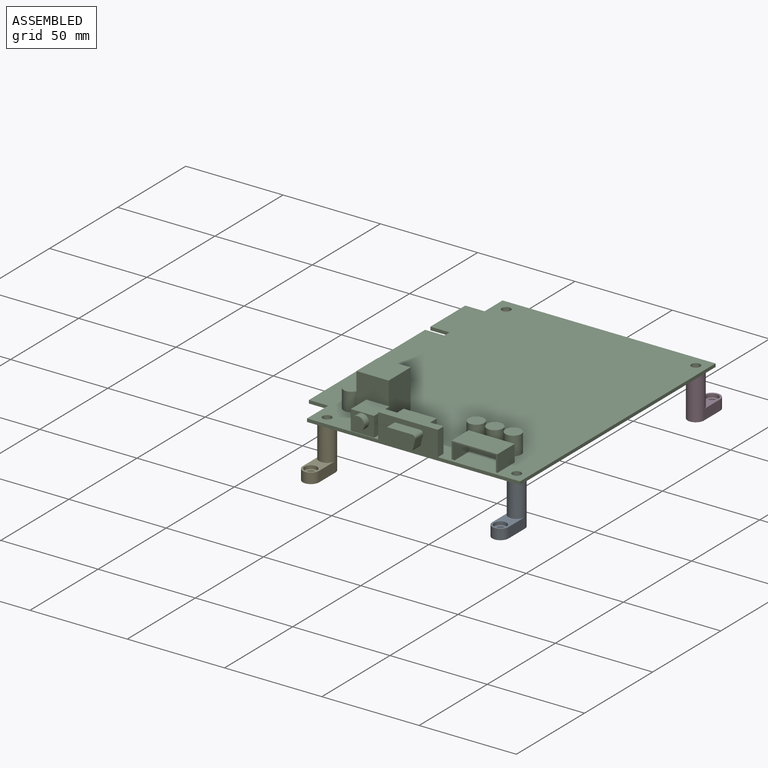
[diagram: assembled view]
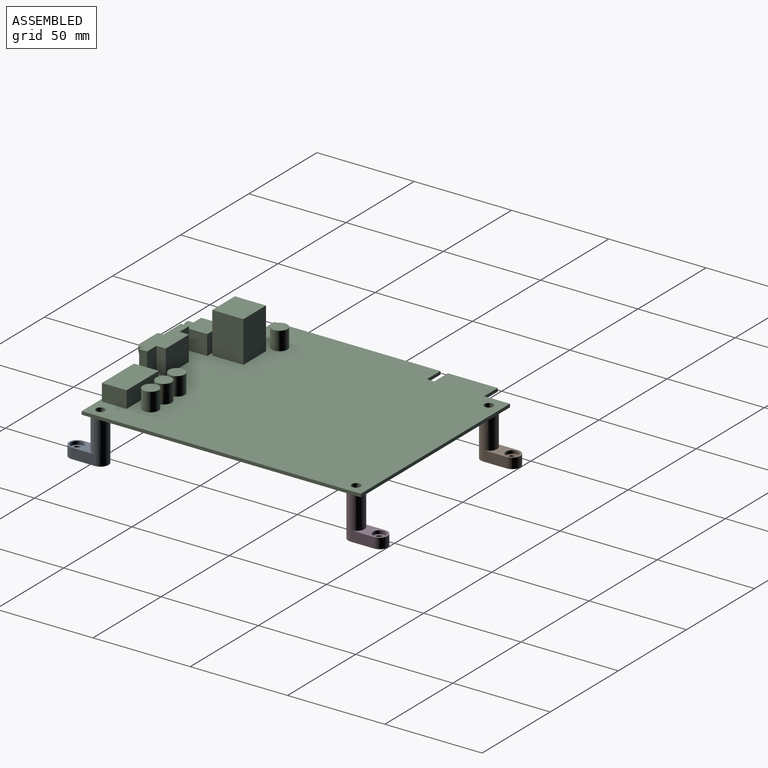
[diagram: assembled view, second angle]
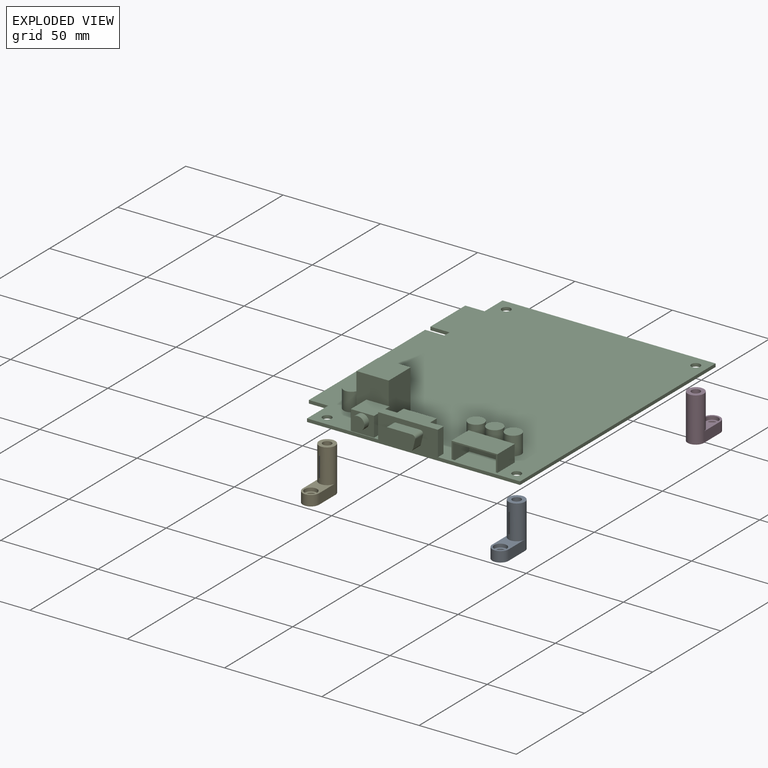
[diagram: exploded view]
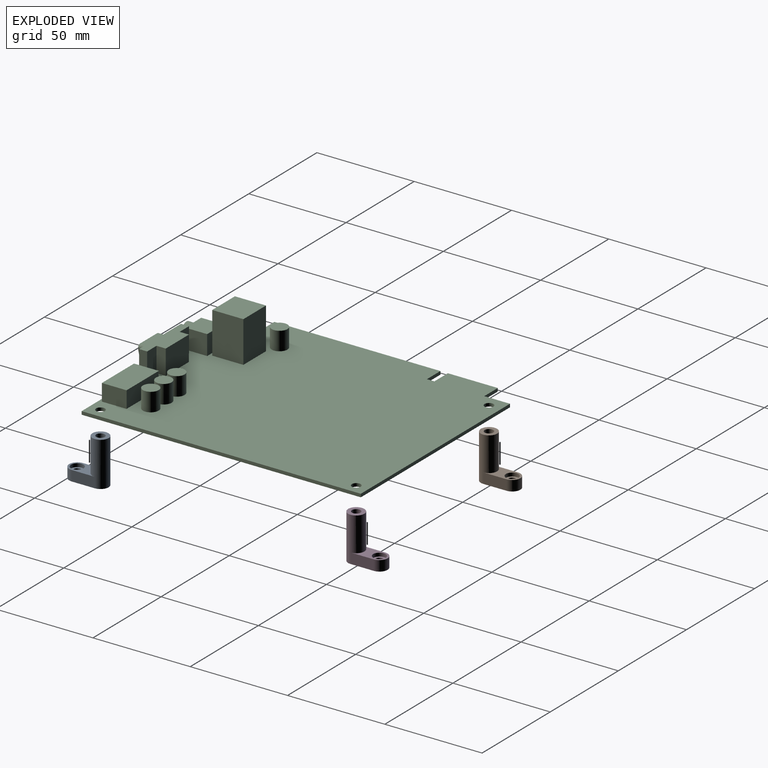
[diagram: exploded view, second angle]
ASSEMBLY  parts=5 mates=4
PART A: 13 faces, bbox 20.3x8.4x22.9 mm
  f0: cylinder r=4.19mm len=22.86mm, axis (0,0,1), area 531.7mm2, adj f1,f2,f5,f7,f8
  f1: plane 20.32x8.38mm, normal (0,0,-1), area 119.5mm2, adj f0,f3,f5,f6,f7,f10
  f2: plane 8.38x8.38mm, normal (0,0,1), area 39.7mm2, adj f0,f9
  f3: cylinder r=2.69mm len=17.78mm, axis (0,0,-1), area 300.8mm2, adj f1,f4
  f4: plane 5.39x5.39mm, normal (0,0,-1), area 7.3mm2, adj f3,f9
  f5: plane 11.94x5.33mm, normal (0,-1,0), area 63.7mm2, adj f0,f1,f6,f8
  f6: cylinder r=4.19mm len=8.38mm, axis (0,0,-1), area 70.2mm2, adj f1,f5,f7,f8
  f7: plane 11.94x5.33mm, normal (0,1,0), area 63.7mm2, adj f0,f1,f6,f8
  f8: plane 16.13x8.38mm, normal (0,0,1), area 67.4mm2, adj f0,f5,f6,f7,f12
  f9: cylinder r=2.22mm len=5.08mm, axis (0,0,1), area 70.9mm2, adj f2,f4
  f10: cylinder r=2.03mm len=4.06mm, axis (0,0,1), area 45.4mm2, adj f1,f11
  f11: plane 6.45x6.45mm, normal (0,0,1), area 19.7mm2, adj f10,f12
  f12: cylinder r=3.23mm len=6.45mm, axis (0,0,1), area 36mm2, adj f8,f11
PART B: same geometry as A
PART C: 95 faces, bbox 119.4x149.4x22.9 mm
  f0: plane 109.47x14.35mm, normal (0,-1,0), area 459mm2, adj f2,f3,f5,f15,f16,f73,f74,f79
  f1: plane 17.02x12.7mm, normal (0,1,0), area 216.1mm2, adj f2,f3,f76,f78
  f2: plane 30.73x8.89mm, normal (0,0,1), area 208.1mm2, adj f0,f1,f73,f74,f75,f76,f77,f78
  f3: plane 143.51x119.38mm, normal (0,0,1), area 15574.3mm2, adj f0,f1,f4,f5,f6,f7,f8,f9
  f4: plane 23.62x8.64mm, normal (0,-1,0), area 30mm2, adj f3,f31,f33,f34,f64,f66,f67
  f5: plane 143.51x1.65mm, normal (1,0,0), area 236.9mm2, adj f0,f3,f6,f16
  f6: plane 109.47x1.65mm, normal (0,1,0), area 180.7mm2, adj f3,f5,f7,f16
  f7: plane 13.21x1.65mm, normal (-1,0,0), area 21.8mm2, adj f3,f6,f8,f16
  f8: plane 9.91x1.65mm, normal (0,1,0), area 16.4mm2, adj f3,f7,f9,f16
  f9: plane 25.65x1.65mm, normal (-1,0,0), area 42.4mm2, adj f3,f8,f10,f16
  f10: plane 9.91x1.65mm, normal (0,-1,0), area 16.4mm2, adj f3,f9,f11,f16
  f11: plane 3.81x1.65mm, normal (-1,0,0), area 6.3mm2, adj f3,f10,f12,f16
  f12: plane 9.91x1.65mm, normal (0,1,0), area 16.4mm2, adj f3,f11,f13,f16
  f13: plane 85.34x1.65mm, normal (-1,0,0), area 140.9mm2, adj f3,f12,f14,f16
  f14: plane 9.91x1.65mm, normal (0,-1,0), area 16.4mm2, adj f3,f13,f15,f16
  f15: plane 15.49x1.65mm, normal (-1,0,0), area 25.6mm2, adj f0,f3,f14,f16
  f16: plane 143.51x119.38mm, normal (0,0,-1), area 16744.5mm2, adj f0,f5,f6,f7,f8,f9,f10,f11
  f17: cylinder r=2.29mm len=4.57mm, axis (0,0,1), area 23.7mm2, adj f3,f16
  f18: cylinder r=2.29mm len=4.57mm, axis (0,0,1), area 23.7mm2, adj f3,f16
  f19: cylinder r=2.29mm len=4.57mm, axis (0,0,1), area 23.7mm2, adj f3,f16
  f20: cylinder r=2.29mm len=4.57mm, axis (0,0,1), area 23.7mm2, adj f3,f16
  f21: cylinder r=4.06mm len=9.53mm, axis (0,0,-1), area 243.2mm2, adj f3,f22
  f22: plane 8.13x8.13mm, normal (0,0,1), area 51.9mm2, adj f21
  f23: cylinder r=4.06mm len=9.53mm, axis (0,0,-1), area 243.2mm2, adj f3,f24
  f24: plane 8.13x8.13mm, normal (0,0,1), area 51.9mm2, adj f23
  f25: cylinder r=4.06mm len=9.53mm, axis (0,0,-1), area 243.2mm2, adj f3,f26
  f26: plane 8.13x8.13mm, normal (0,0,1), area 51.9mm2, adj f25
  f27: cylinder r=4.06mm len=9.53mm, axis (0,0,-1), area 243.2mm2, adj f3,f28
  f28: plane 8.13x8.13mm, normal (0,0,1), area 51.9mm2, adj f27
  f29: cylinder r=4.06mm len=9.53mm, axis (0,0,-1), area 243.2mm2, adj f3,f30
  f30: plane 8.13x8.13mm, normal (0,0,1), area 51.9mm2, adj f29
  f31: plane 12.7x8.64mm, normal (1,0,0), area 109.7mm2, adj f3,f4,f32,f34
  f32: plane 23.62x8.64mm, normal (0,1,0), area 204mm2, adj f3,f31,f33,f34
  f33: plane 12.7x8.64mm, normal (-1,0,0), area 109.7mm2, adj f3,f4,f32,f34
  f34: plane 23.62x12.7mm, normal (0,0,1), area 300mm2, adj f4,f31,f32,f33
  f35: plane 22.1x0.76mm, normal (0,1,0), area 16.8mm2, adj f3,f48,f64,f66
  f36: plane 107.95x0.13mm, normal (0,1,0), area 13.7mm2, adj f37,f47,f48,f49
  f37: plane 141.99x0.13mm, normal (-1,0,0), area 18mm2, adj f36,f38,f48,f49
  f38: plane 107.95x0.13mm, normal (0,-1,0), area 13.7mm2, adj f37,f39,f48,f49
  f39: plane 13.21x0.13mm, normal (1,0,0), area 1.7mm2, adj f38,f40,f48,f49
  f40: plane 9.91x0.13mm, normal (0,-1,0), area 1.3mm2, adj f39,f41,f48,f49
  f41: plane 24.13x0.13mm, normal (1,0,0), area 3.1mm2, adj f40,f42,f48,f49
  f42: plane 9.91x0.13mm, normal (0,1,0), area 1.3mm2, adj f41,f43,f48,f49
  f43: plane 5.33x0.13mm, normal (1,0,0), area 0.7mm2, adj f42,f44,f48,f49
  f44: plane 9.91x0.13mm, normal (0,-1,0), area 1.3mm2, adj f43,f45,f48,f49
  f45: plane 83.82x0.13mm, normal (1,0,0), area 10.6mm2, adj f44,f46,f48,f49
  f46: plane 9.91x0.13mm, normal (0,1,0), area 1.3mm2, adj f45,f47,f48,f49
  f47: plane 15.49x0.13mm, normal (1,0,0), area 2mm2, adj f36,f46,f48,f49
  f48: plane 141.99x117.86mm, normal (0,0,-1), area 15844.9mm2, adj f35,f36,f37,f38,f39,f40,f41,f42
  f49: plane 141.99x117.86mm, normal (0,0,1), area 16280mm2, adj f36,f37,f38,f39,f40,f41,f42,f43
  f50: cylinder r=3.05mm len=6.1mm, axis (0,0,1), area 2.4mm2, adj f48,f49
  f51: cylinder r=3.05mm len=6.1mm, axis (0,0,1), area 2.4mm2, adj f48,f49
  f52: cylinder r=3.05mm len=6.1mm, axis (0,0,1), area 2.4mm2, adj f48,f49
  f53: cylinder r=3.05mm len=6.1mm, axis (0,0,1), area 2.4mm2, adj f48,f49
  f54: cylinder r=3.3mm len=9.53mm, axis (0,0,-1), area 197.6mm2, adj f48,f55
  f55: plane 6.6x6.6mm, normal (0,0,-1), area 34.3mm2, adj f54
  f56: cylinder r=3.3mm len=9.53mm, axis (0,0,-1), area 197.6mm2, adj f48,f57
  f57: plane 6.6x6.6mm, normal (0,0,-1), area 34.3mm2, adj f56
  f58: cylinder r=3.3mm len=9.53mm, axis (0,0,-1), area 197.6mm2, adj f48,f59
  f59: plane 6.6x6.6mm, normal (0,0,-1), area 34.3mm2, adj f58
  f60: cylinder r=3.3mm len=9.53mm, axis (0,0,-1), area 197.6mm2, adj f48,f61
  f61: plane 6.6x6.6mm, normal (0,0,-1), area 34.3mm2, adj f60
  f62: cylinder r=3.3mm len=9.53mm, axis (0,0,-1), area 197.6mm2, adj f48,f63
  f63: plane 6.6x6.6mm, normal (0,0,-1), area 34.3mm2, adj f62
  f64: plane 11.94x8.64mm, normal (-1,0,0), area 103.1mm2, adj f4,f35,f48,f65,f67
  f65: plane 22.1x8.64mm, normal (0,-1,0), area 190.8mm2, adj f48,f64,f66,f67
  f66: plane 11.94x8.64mm, normal (1,0,0), area 103.1mm2, adj f4,f35,f48,f65,f67
  f67: plane 22.1x11.94mm, normal (0,0,-1), area 263.8mm2, adj f4,f64,f65,f66
  f68: plane 21.21x16mm, normal (-1,0,0), area 339.4mm2, adj f3,f69,f71,f72
  f69: plane 21.21x16.64mm, normal (0,-1,0), area 352.9mm2, adj f3,f68,f70,f72
  f70: plane 21.21x16mm, normal (1,0,0), area 339.4mm2, adj f3,f69,f71,f72
  f71: plane 21.21x16.64mm, normal (0,1,0), area 352.9mm2, adj f3,f68,f70,f72
  f72: plane 16.64x16mm, normal (0,0,1), area 266.2mm2, adj f68,f69,f70,f71
  f73: plane 12.7x4.14mm, normal (-1,0,0), area 52.6mm2, adj f0,f2,f3,f75
  f74: plane 12.7x4.14mm, normal (1,0,0), area 52.6mm2, adj f0,f2,f3,f77
  f75: plane 12.7x6.86mm, normal (0,1,0), area 87.1mm2, adj f2,f3,f73,f76
  f76: plane 12.7x4.75mm, normal (-1,0,0), area 60.3mm2, adj f1,f2,f3,f75
  f77: plane 12.7x6.86mm, normal (0,1,0), area 87.1mm2, adj f2,f3,f74,f78
  f78: plane 12.7x4.75mm, normal (1,0,0), area 60.3mm2, adj f1,f2,f3,f77
  f79: plane 5.84x4.72mm, normal (0.97,0,-0.23), area 28.3mm2, adj f0,f80,f86,f87
  f80: cylinder r=1.57mm len=5.84mm, axis (0,1,0), area 16.6mm2, adj f0,f79,f81,f87
  f81: plane 12.41x5.84mm, normal (0,0,1), area 72.5mm2, adj f0,f80,f82,f87
  f82: cylinder r=1.57mm len=5.84mm, axis (0,1,0), area 16.6mm2, adj f0,f81,f83,f87
  f83: plane 5.84x4.72mm, normal (-0.97,0,-0.23), area 28.3mm2, adj f0,f82,f84,f87
  f84: cylinder r=1.57mm len=5.84mm, axis (0,1,0), area 12.3mm2, adj f0,f83,f85,f87
  f85: plane 10.2x5.84mm, normal (0,0,-1), area 59.6mm2, adj f0,f84,f86,f87
  f86: cylinder r=1.57mm len=5.84mm, axis (0,1,0), area 12.3mm2, adj f0,f79,f85,f87
  f87: plane 15.56x7.87mm, normal (0,-1,0), area 112.1mm2, adj f79,f80,f81,f82,f83,f84,f85,f86
  f88: plane 11.43x10.16mm, normal (-1,0,0), area 116.1mm2, adj f3,f89,f91,f92
  f89: plane 11.94x10.16mm, normal (0,-1,0), area 84.4mm2, adj f3,f88,f90,f92,f93
  f90: plane 11.43x10.16mm, normal (1,0,0), area 116.1mm2, adj f3,f89,f91,f92
  f91: plane 11.94x10.16mm, normal (0,1,0), area 121.3mm2, adj f3,f88,f90,f92
  f92: plane 11.94x11.43mm, normal (0,0,1), area 136.5mm2, adj f88,f89,f90,f91
  f93: cylinder r=3.43mm len=6.86mm, axis (0,1,0), area 73.9mm2, adj f89,f94
  f94: plane 6.86x6.86mm, normal (0,-1,0), area 36.9mm2, adj f93
PART D: same geometry as A
PART E: same geometry as A
PLACE A rot(axis=(0,0,1),90deg) t=(119.72,-112.12,-11.7)mm
PLACE B rot(axis=(0,0,-1),90deg) t=(-108.5,117.37,-11.7)mm
PLACE C t=(5.29,2.94,-11.7)mm fixed
PLACE D rot(axis=(0,0,-1),90deg) t=(-11.09,117.37,-11.7)mm
PLACE E rot(axis=(0,0,1),90deg) t=(22.31,-112.12,-11.7)mm
MATE fastened A.f0 <-> C.f19  axis (0,0,1) through (54.31,-63.1,-11.7)mm
MATE fastened E.f0 <-> C.f20  axis (0,0,1) through (-43.1,-63.1,-11.7)mm
MATE fastened B.f0 <-> C.f17  axis (0,0,1) through (-43.1,68.34,-11.7)mm
MATE fastened D.f0 <-> C.f18  axis (0,0,1) through (54.31,68.34,-11.7)mm
